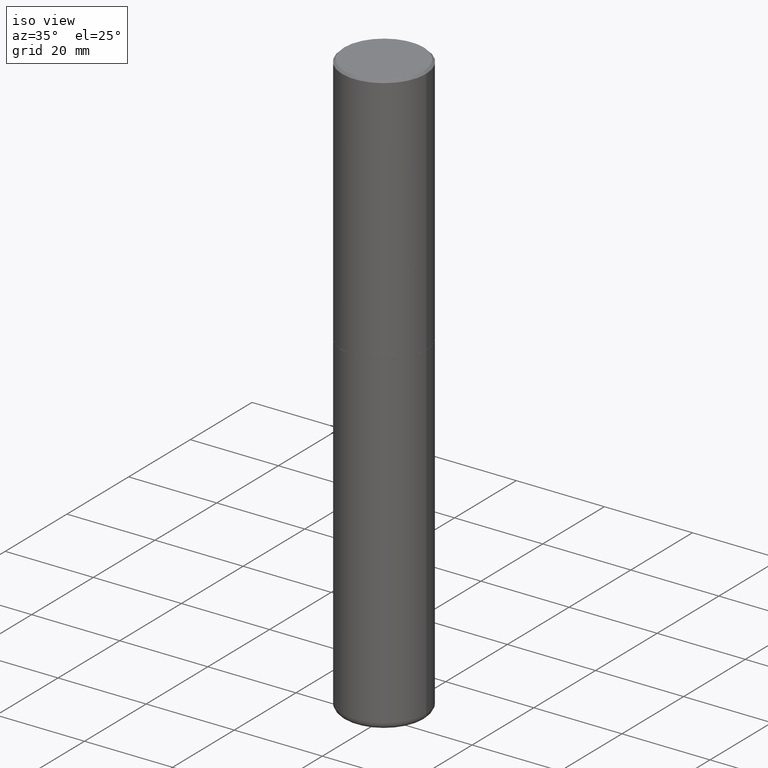
[diagram: clean part render]
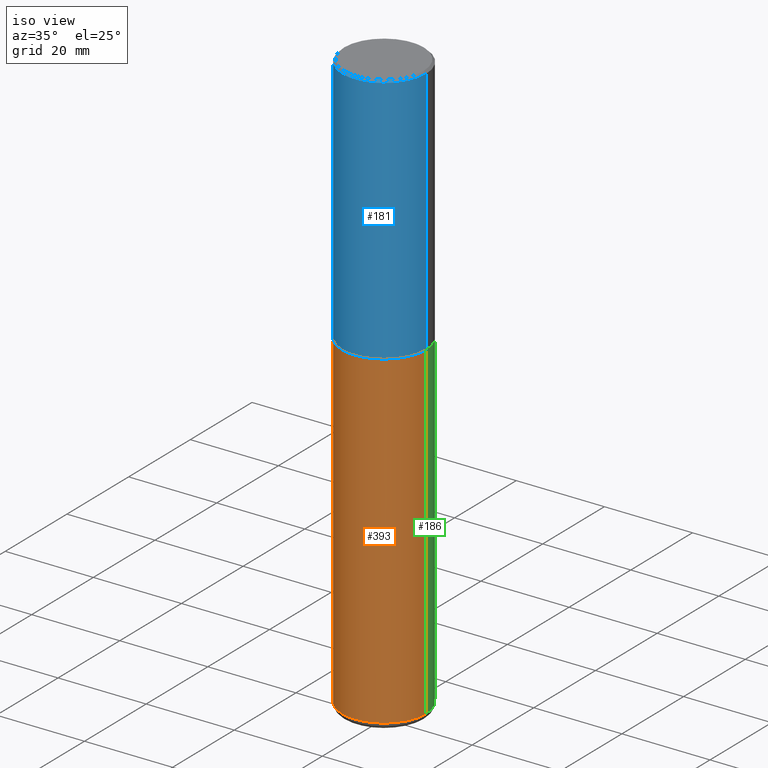
[diagram: same view with three faces highlighted in distinct colors, each labeled with its STEP entity id]
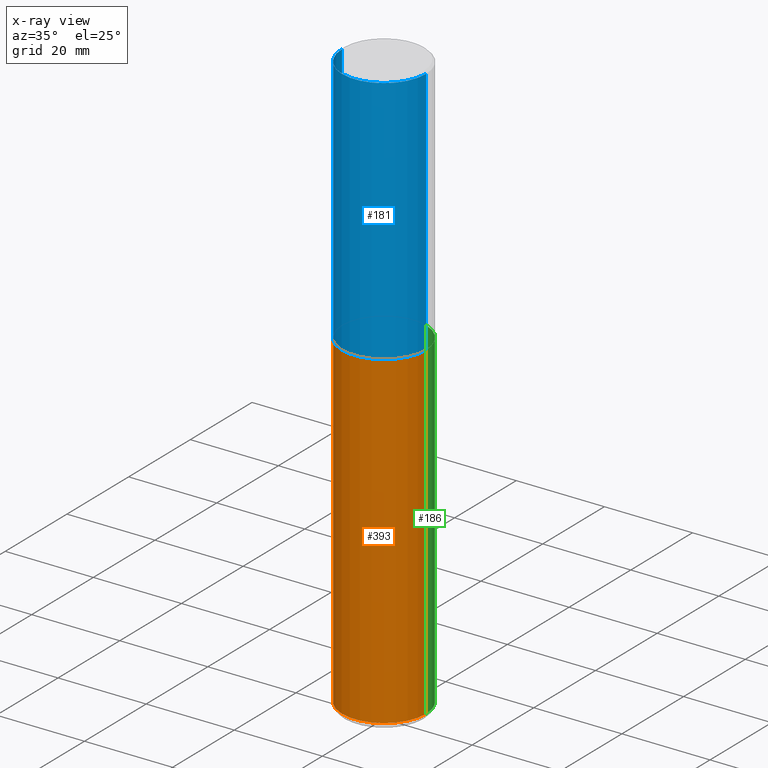
[diagram: x-ray of the same camera — body ghosted, the three highlighted faces saturated]
A machine part, iso view with three faces highlighted in distinct colors.
The next image is the same camera in x-ray (body ghosted, the three faces saturated) — at least one of them is partly hidden behind the body in this view.
Their STEP definitions:

[orange] entity #393 — the highlighted cylindrical surface (partial cylindrical patch) has radius 9.525 mm, axis along (-0, 0, 1).
#31 = FACE_OUTER_BOUND ( 'NONE', #115, .T. ) ;
#54 = EDGE_CURVE ( 'NONE', #113, #167, #333, .T. ) ;
#77 = DIRECTION ( 'NONE',  ( -2.445468806185136597E-29, 3.491481338843145583E-15, 1.000000000000000000 ) ) ;
#93 = CARTESIAN_POINT ( 'NONE',  ( 0.3750000000000000555, -2.618611004132350016E-15, 1.828566290923476203E-29 ) ) ;
#112 = VECTOR ( 'NONE', #253, 39.37007874015748143 ) ;
#113 = VERTEX_POINT ( 'NONE', #124 ) ;
#115 = EDGE_LOOP ( 'NONE', ( #198, #260, #263, #332 ) ) ;
#120 = DIRECTION ( 'NONE',  ( -2.445468806185136877E-29, 3.491481338843145188E-15, 1.000000000000000000 ) ) ;
#124 = CARTESIAN_POINT ( 'NONE',  ( -0.3750000000000000555, -1.032377532139612519E-14, -2.250000000000000000 ) ) ;
#125 = CARTESIAN_POINT ( 'NONE',  ( -0.3749999999999999445, -1.545625288949554763E-14, -5.190000000000000391 ) ) ;
#129 = AXIS2_PLACEMENT_3D ( 'NONE', #185, #218, #409 ) ;
#167 = VERTEX_POINT ( 'NONE', #351 ) ;
#169 = VECTOR ( 'NONE', #120, 39.37007874015748143 ) ;
#173 = CARTESIAN_POINT ( 'NONE',  ( 0.000000000000000000, 0.000000000000000000, 0.000000000000000000 ) ) ;
#174 = CARTESIAN_POINT ( 'NONE',  ( 5.502304813916557343E-29, -7.855833012397078448E-15, -2.250000000000000000 ) ) ;
#179 = DIRECTION ( 'NONE',  ( 1.000000000000000000, -6.982962677686264344E-15, 0.000000000000000000 ) ) ;
#185 = CARTESIAN_POINT ( 'NONE',  ( 1.269198310410085786E-28, -1.812078814859592648E-14, -5.190000000000000391 ) ) ;
#192 = DIRECTION ( 'NONE',  ( -2.445468806185136597E-29, 3.491481338843145583E-15, 1.000000000000000000 ) ) ;
#198 = ORIENTED_EDGE ( 'NONE', *, *, #204, .F. ) ;
#204 = EDGE_CURVE ( 'NONE', #258, #113, #410, .T. ) ;
#218 = DIRECTION ( 'NONE',  ( -2.445468806185136597E-29, 3.491481338843145583E-15, 1.000000000000000000 ) ) ;
#221 = EDGE_CURVE ( 'NONE', #328, #167, #376, .T. ) ;
#232 = AXIS2_PLACEMENT_3D ( 'NONE', #173, #192, #320 ) ;
#253 = DIRECTION ( 'NONE',  ( -2.445468806185136877E-29, 3.491481338843145188E-15, 1.000000000000000000 ) ) ;
#254 = EDGE_CURVE ( 'NONE', #258, #328, #386, .T. ) ;
#258 = VERTEX_POINT ( 'NONE', #125 ) ;
#260 = ORIENTED_EDGE ( 'NONE', *, *, #254, .T. ) ;
#263 = ORIENTED_EDGE ( 'NONE', *, *, #221, .T. ) ;
#320 = DIRECTION ( 'NONE',  ( 1.000000000000000000, -6.982962677686265922E-15, 4.876176775795935793E-29 ) ) ;
#328 = VERTEX_POINT ( 'NONE', #329 ) ;
#329 = CARTESIAN_POINT ( 'NONE',  ( 0.3749999999999999445, -2.073939915272827335E-14, -5.190000000000000391 ) ) ;
#332 = ORIENTED_EDGE ( 'NONE', *, *, #54, .F. ) ;
#333 = CIRCLE ( 'NONE', #343, 0.3750000000000000555 ) ;
#343 = AXIS2_PLACEMENT_3D ( 'NONE', #174, #77, #179 ) ;
#351 = CARTESIAN_POINT ( 'NONE',  ( 0.3750000000000000555, -1.047444401652942689E-14, -2.250000000000000000 ) ) ;
#361 = CYLINDRICAL_SURFACE ( 'NONE', #232, 0.3750000000000000555 ) ;
#376 = LINE ( 'NONE', #93, #112 ) ;
#386 = CIRCLE ( 'NONE', #129, 0.3750000000000000555 ) ;
#393 = ADVANCED_FACE ( 'NONE', ( #31 ), #361, .T. ) ;
#403 = CARTESIAN_POINT ( 'NONE',  ( -0.3750000000000000555, 2.664535259100376091E-15, -1.844600658845589598E-29 ) ) ;
#409 = DIRECTION ( 'NONE',  ( 1.000000000000000000, -6.982962677686261189E-15, 0.000000000000000000 ) ) ;
#410 = LINE ( 'NONE', #403, #169 ) ;

[blue] entity #181 — the highlighted cylindrical surface (partial cylindrical patch) has radius 9.525 mm, axis along (-0, 0, 1).
#15 = AXIS2_PLACEMENT_3D ( 'NONE', #154, #255, #56 ) ;
#36 = DIRECTION ( 'NONE',  ( -2.445468806185136597E-29, 3.491481338843145583E-15, 1.000000000000000000 ) ) ;
#56 = DIRECTION ( 'NONE',  ( 1.000000000000000000, -6.982962677686266711E-15, 4.876176775795935793E-29 ) ) ;
#65 = CARTESIAN_POINT ( 'NONE',  ( -0.3750000000000001665, 2.664535259100376880E-15, -1.844600658845590439E-29 ) ) ;
#70 = ORIENTED_EDGE ( 'NONE', *, *, #247, .T. ) ;
#84 = CARTESIAN_POINT ( 'NONE',  ( 5.499859345110371740E-29, -7.852341531058233864E-15, -2.249000000000000110 ) ) ;
#92 = CYLINDRICAL_SURFACE ( 'NONE', #15, 0.3750000000000001665 ) ;
#94 = DIRECTION ( 'NONE',  ( -2.445468806185136877E-29, 3.491481338843145188E-15, 1.000000000000000000 ) ) ;
#100 = VERTEX_POINT ( 'NONE', #107 ) ;
#107 = CARTESIAN_POINT ( 'NONE',  ( -0.3750000000000002776, -1.296550319817168545E-15, -2.249000000000000110 ) ) ;
#118 = FACE_OUTER_BOUND ( 'NONE', #326, .T. ) ;
#128 = AXIS2_PLACEMENT_3D ( 'NONE', #84, #347, #311 ) ;
#135 = VECTOR ( 'NONE', #94, 39.37007874015748143 ) ;
#138 = CARTESIAN_POINT ( 'NONE',  ( -0.3750000000000000555, 2.548781377355486718E-15, -0.02000000000000008715 ) ) ;
#140 = CARTESIAN_POINT ( 'NONE',  ( 0.3750000000000002776, -1.047095253519058704E-14, -2.249000000000000110 ) ) ;
#154 = CARTESIAN_POINT ( 'NONE',  ( 0.000000000000000000, 0.000000000000000000, 0.000000000000000000 ) ) ;
#168 = ORIENTED_EDGE ( 'NONE', *, *, #353, .F. ) ;
#181 = ADVANCED_FACE ( 'NONE', ( #118 ), #92, .T. ) ;
#187 = CARTESIAN_POINT ( 'NONE',  ( 0.3750000000000000555, -2.642516375941188029E-15, -0.02000000000000008715 ) ) ;
#231 = CARTESIAN_POINT ( 'NONE',  ( 4.890937612370294178E-31, -6.982962677686321191E-17, -0.02000000000000008715 ) ) ;
#234 = VERTEX_POINT ( 'NONE', #187 ) ;
#247 = EDGE_CURVE ( 'NONE', #100, #356, #275, .T. ) ;
#255 = DIRECTION ( 'NONE',  ( -2.445468806185136597E-29, 3.491481338843145583E-15, 1.000000000000000000 ) ) ;
#266 = CARTESIAN_POINT ( 'NONE',  ( 0.3750000000000001665, -2.618611004132351200E-15, 1.828566290923476763E-29 ) ) ;
#275 = CIRCLE ( 'NONE', #128, 0.3750000000000002776 ) ;
#309 = AXIS2_PLACEMENT_3D ( 'NONE', #231, #36, #327 ) ;
#311 = DIRECTION ( 'NONE',  ( 1.000000000000000000, -6.982962677686267499E-15, 0.000000000000000000 ) ) ;
#321 = VERTEX_POINT ( 'NONE', #138 ) ;
#326 = EDGE_LOOP ( 'NONE', ( #354, #70, #388, #168 ) ) ;
#327 = DIRECTION ( 'NONE',  ( 1.000000000000000000, -6.982962677686265922E-15, 0.000000000000000000 ) ) ;
#340 = EDGE_CURVE ( 'NONE', #100, #321, #352, .T. ) ;
#347 = DIRECTION ( 'NONE',  ( -2.445468806185136597E-29, 3.491481338843145583E-15, 1.000000000000000000 ) ) ;
#352 = LINE ( 'NONE', #65, #135 ) ;
#353 = EDGE_CURVE ( 'NONE', #321, #234, #366, .T. ) ;
#354 = ORIENTED_EDGE ( 'NONE', *, *, #340, .F. ) ;
#356 = VERTEX_POINT ( 'NONE', #140 ) ;
#359 = LINE ( 'NONE', #266, #417 ) ;
#366 = CIRCLE ( 'NONE', #309, 0.3750000000000000555 ) ;
#388 = ORIENTED_EDGE ( 'NONE', *, *, #407, .T. ) ;
#392 = DIRECTION ( 'NONE',  ( -2.445468806185136877E-29, 3.491481338843145188E-15, 1.000000000000000000 ) ) ;
#407 = EDGE_CURVE ( 'NONE', #356, #234, #359, .T. ) ;
#417 = VECTOR ( 'NONE', #392, 39.37007874015748143 ) ;

[green] entity #186 — the highlighted cylindrical surface (partial cylindrical patch) has radius 9.525 mm, axis along (-0, 0, 1).
#25 = CARTESIAN_POINT ( 'NONE',  ( 1.269198310410085786E-28, -1.812078814859592648E-14, -5.190000000000000391 ) ) ;
#53 = DIRECTION ( 'NONE',  ( -2.445468806185136597E-29, 3.491481338843145583E-15, 1.000000000000000000 ) ) ;
#76 = AXIS2_PLACEMENT_3D ( 'NONE', #381, #53, #189 ) ;
#80 = ORIENTED_EDGE ( 'NONE', *, *, #204, .T. ) ;
#85 = CIRCLE ( 'NONE', #200, 0.3750000000000000555 ) ;
#90 = DIRECTION ( 'NONE',  ( 1.000000000000000000, -6.982962677686261189E-15, 0.000000000000000000 ) ) ;
#93 = CARTESIAN_POINT ( 'NONE',  ( 0.3750000000000000555, -2.618611004132350016E-15, 1.828566290923476203E-29 ) ) ;
#97 = ORIENTED_EDGE ( 'NONE', *, *, #117, .T. ) ;
#112 = VECTOR ( 'NONE', #253, 39.37007874015748143 ) ;
#113 = VERTEX_POINT ( 'NONE', #124 ) ;
#117 = EDGE_CURVE ( 'NONE', #328, #258, #85, .T. ) ;
#120 = DIRECTION ( 'NONE',  ( -2.445468806185136877E-29, 3.491481338843145188E-15, 1.000000000000000000 ) ) ;
#124 = CARTESIAN_POINT ( 'NONE',  ( -0.3750000000000000555, -1.032377532139612519E-14, -2.250000000000000000 ) ) ;
#125 = CARTESIAN_POINT ( 'NONE',  ( -0.3749999999999999445, -1.545625288949554763E-14, -5.190000000000000391 ) ) ;
#158 = CYLINDRICAL_SURFACE ( 'NONE', #76, 0.3750000000000000555 ) ;
#167 = VERTEX_POINT ( 'NONE', #351 ) ;
#169 = VECTOR ( 'NONE', #120, 39.37007874015748143 ) ;
#186 = ADVANCED_FACE ( 'NONE', ( #215 ), #158, .T. ) ;
#189 = DIRECTION ( 'NONE',  ( 1.000000000000000000, -6.982962677686265922E-15, 4.876176775795935793E-29 ) ) ;
#200 = AXIS2_PLACEMENT_3D ( 'NONE', #25, #284, #90 ) ;
#201 = ORIENTED_EDGE ( 'NONE', *, *, #221, .F. ) ;
#202 = DIRECTION ( 'NONE',  ( 1.000000000000000000, -6.982962677686264344E-15, 0.000000000000000000 ) ) ;
#204 = EDGE_CURVE ( 'NONE', #258, #113, #410, .T. ) ;
#205 = DIRECTION ( 'NONE',  ( -2.445468806185136597E-29, 3.491481338843145583E-15, 1.000000000000000000 ) ) ;
#215 = FACE_OUTER_BOUND ( 'NONE', #265, .T. ) ;
#221 = EDGE_CURVE ( 'NONE', #328, #167, #376, .T. ) ;
#253 = DIRECTION ( 'NONE',  ( -2.445468806185136877E-29, 3.491481338843145188E-15, 1.000000000000000000 ) ) ;
#258 = VERTEX_POINT ( 'NONE', #125 ) ;
#265 = EDGE_LOOP ( 'NONE', ( #97, #80, #310, #201 ) ) ;
#284 = DIRECTION ( 'NONE',  ( -2.445468806185136597E-29, 3.491481338843145583E-15, 1.000000000000000000 ) ) ;
#296 = EDGE_CURVE ( 'NONE', #167, #113, #385, .T. ) ;
#310 = ORIENTED_EDGE ( 'NONE', *, *, #296, .F. ) ;
#328 = VERTEX_POINT ( 'NONE', #329 ) ;
#329 = CARTESIAN_POINT ( 'NONE',  ( 0.3749999999999999445, -2.073939915272827335E-14, -5.190000000000000391 ) ) ;
#351 = CARTESIAN_POINT ( 'NONE',  ( 0.3750000000000000555, -1.047444401652942689E-14, -2.250000000000000000 ) ) ;
#376 = LINE ( 'NONE', #93, #112 ) ;
#381 = CARTESIAN_POINT ( 'NONE',  ( 0.000000000000000000, 0.000000000000000000, 0.000000000000000000 ) ) ;
#383 = CARTESIAN_POINT ( 'NONE',  ( 5.502304813916557343E-29, -7.855833012397078448E-15, -2.250000000000000000 ) ) ;
#385 = CIRCLE ( 'NONE', #413, 0.3750000000000000555 ) ;
#403 = CARTESIAN_POINT ( 'NONE',  ( -0.3750000000000000555, 2.664535259100376091E-15, -1.844600658845589598E-29 ) ) ;
#410 = LINE ( 'NONE', #403, #169 ) ;
#413 = AXIS2_PLACEMENT_3D ( 'NONE', #383, #205, #202 ) ;